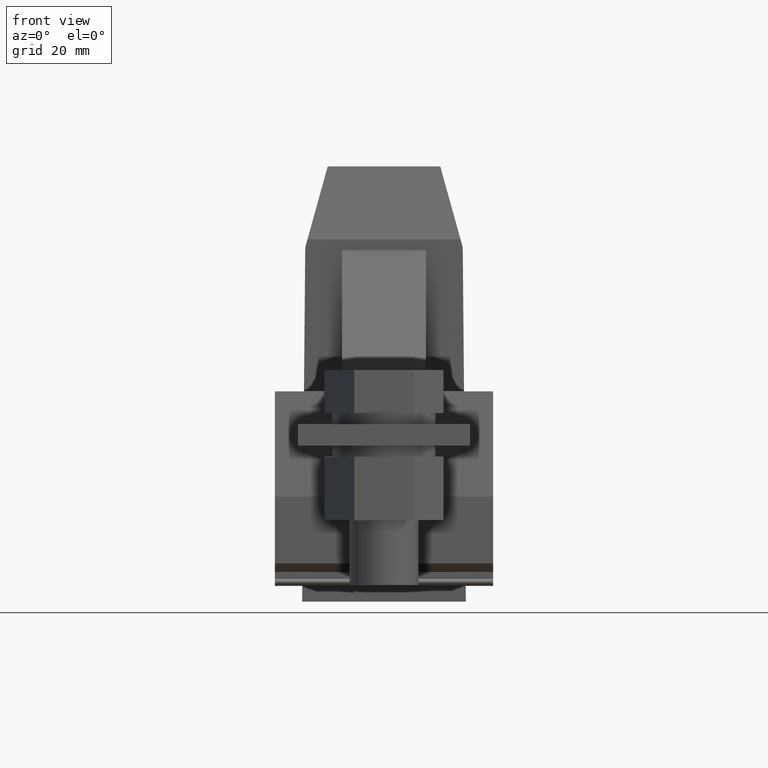
[diagram: clean part render]
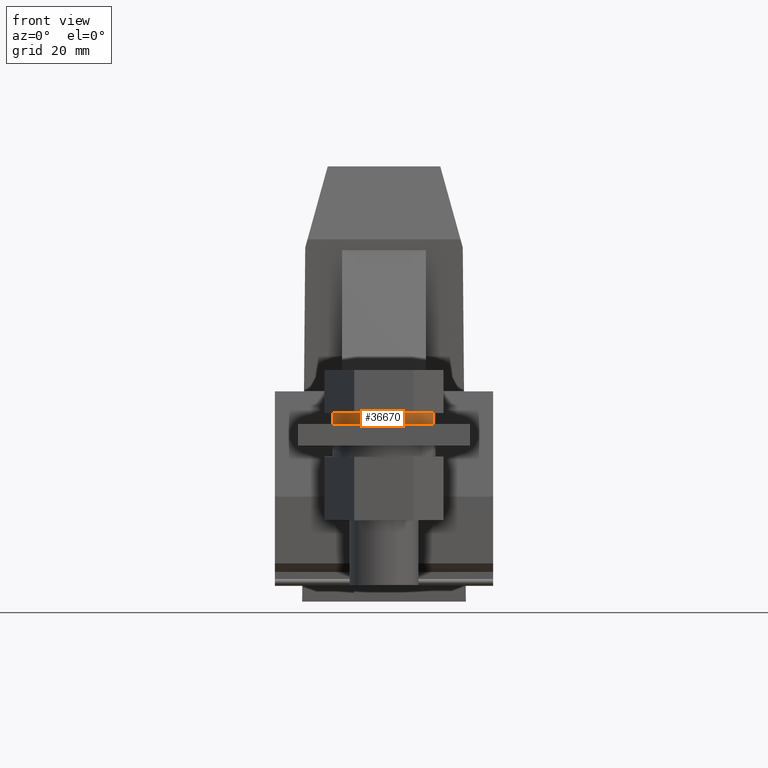
[diagram: same view with one face highlighted and labeled with its STEP entity id]
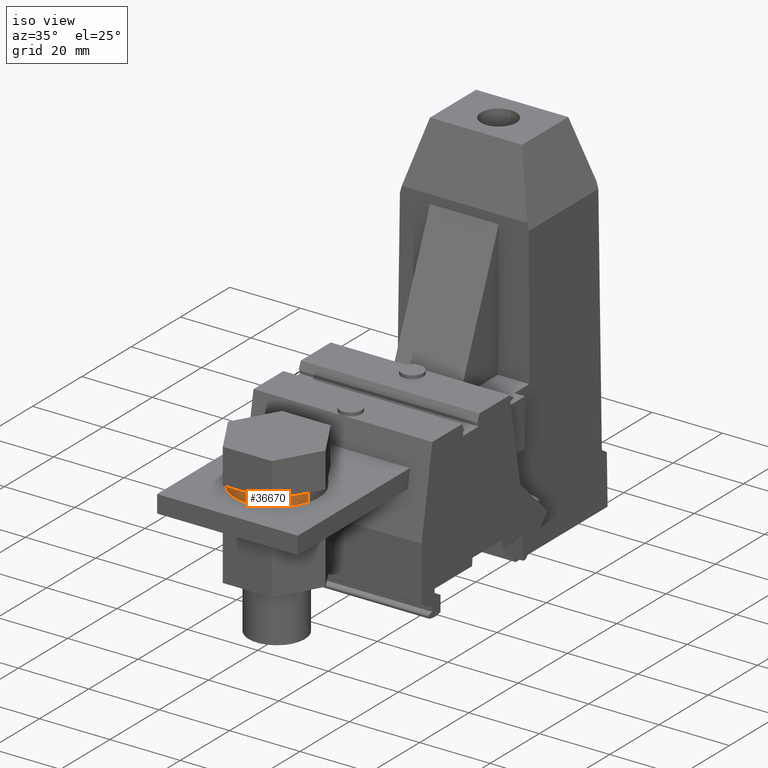
[diagram: same view with one face highlighted and labeled with its STEP entity id]
A machine part, front view. The second image highlights one B-rep face of the part: STEP entity #36670.
A second angle (iso view) of the same face is appended — the face is thin or edge-on in the first view.
In plain terms, the highlighted cylindrical surface (partial cylindrical patch) has radius 12 mm, axis along (0, 0, -1).
Its self-contained STEP definition (entity closure, byte-faithful):
#11980=CARTESIAN_POINT('',(-198.107569230969,765.556092873312,
2.19999999999997));
#11990=DIRECTION('',(-5.83861515245014E-29,-1.,1.76590445769239E-29));
#12000=DIRECTION('',(-0.299371895184,3.43283118920015E-29,
0.954136504056909));
#12010=AXIS2_PLACEMENT_3D('',#11980,#11990,#12000);
#12020=CIRCLE('',#12010,12.);
#15120=CARTESIAN_POINT('',(-192.107569230969,765.556092873312,
12.5923048454132));
#15130=VERTEX_POINT('',#15120);
#15140=CARTESIAN_POINT('',(-201.700031973177,765.556092873312,
13.6496380486829));
#15150=VERTEX_POINT('',#15140);
#15160=EDGE_CURVE('',#15130,#15150,#12020,.T.);
#33180=CARTESIAN_POINT('',(-198.107569230969,762.956092873311,
2.19999999999997));
#33190=DIRECTION('',(-5.83861515245014E-29,-1.,1.76590445769239E-29));
#33200=DIRECTION('',(-0.299371895184,3.43283118920015E-29,
0.954136504056909));
#33210=AXIS2_PLACEMENT_3D('',#33180,#33190,#33200);
#33220=CIRCLE('',#33210,12.);
#33230=CARTESIAN_POINT('',(-201.700031973177,762.956092873311,
13.6496380486829));
#33240=VERTEX_POINT('',#33230);
#33250=CARTESIAN_POINT('',(-194.515106488761,762.956092873311,
-9.24963804868293));
#33260=VERTEX_POINT('',#33250);
#33290=EDGE_CURVE('',#33260,#33240,#33220,.T.);
#36340=CARTESIAN_POINT('',(-198.107569230969,765.556092873312,
2.19999999999997));
#36350=DIRECTION('',(-5.83861515245014E-29,-1.,1.76590445769239E-29));
#36360=DIRECTION('',(-0.299371895184,3.43283118920015E-29,
0.954136504056909));
#36370=AXIS2_PLACEMENT_3D('',#36340,#36350,#36360);
#36380=CYLINDRICAL_SURFACE('',#36370,12.);
#36390=CARTESIAN_POINT('',(-201.700031973177,765.556092873312,
13.6496380486829));
#36400=DIRECTION('',(-5.83861515245014E-29,-1.,1.76590445769239E-29));
#36410=VECTOR('',#36400,1.);
#36420=LINE('',#36390,#36410);
#36430=EDGE_CURVE('',#15150,#33240,#36420,.T.);
#36440=ORIENTED_EDGE('',*,*,#36430,.T.);
#36450=ORIENTED_EDGE('',*,*,#15160,.T.);
#36460=CARTESIAN_POINT('',(-186.107569230969,765.556092873312,
2.19999999999997));
#36470=VERTEX_POINT('',#36460);
#36480=EDGE_CURVE('',#36470,#15130,#12020,.T.);
#36490=ORIENTED_EDGE('',*,*,#36480,.T.);
#36500=CARTESIAN_POINT('',(-192.107569230969,765.556092873312,
-8.1923048454133));
#36510=VERTEX_POINT('',#36500);
#36520=EDGE_CURVE('',#36510,#36470,#12020,.T.);
#36530=ORIENTED_EDGE('',*,*,#36520,.T.);
#36540=CARTESIAN_POINT('',(-194.515106488761,765.556092873312,
-9.24963804868293));
#36550=VERTEX_POINT('',#36540);
#36560=EDGE_CURVE('',#36550,#36510,#12020,.T.);
#36570=ORIENTED_EDGE('',*,*,#36560,.T.);
#36580=CARTESIAN_POINT('',(-194.515106488761,765.556092873312,
-9.24963804868293));
#36590=DIRECTION('',(-5.83861515245014E-29,-1.,1.76590445769239E-29));
#36600=VECTOR('',#36590,1.);
#36610=LINE('',#36580,#36600);
#36620=EDGE_CURVE('',#36550,#33260,#36610,.T.);
#36630=ORIENTED_EDGE('',*,*,#36620,.F.);
#36640=ORIENTED_EDGE('',*,*,#33290,.F.);
#36650=EDGE_LOOP('',(#36640,#36630,#36570,#36530,#36490,#36450,#36440));
#36660=FACE_OUTER_BOUND('',#36650,.T.);
#36670=ADVANCED_FACE('',(#36660),#36380,.T.);